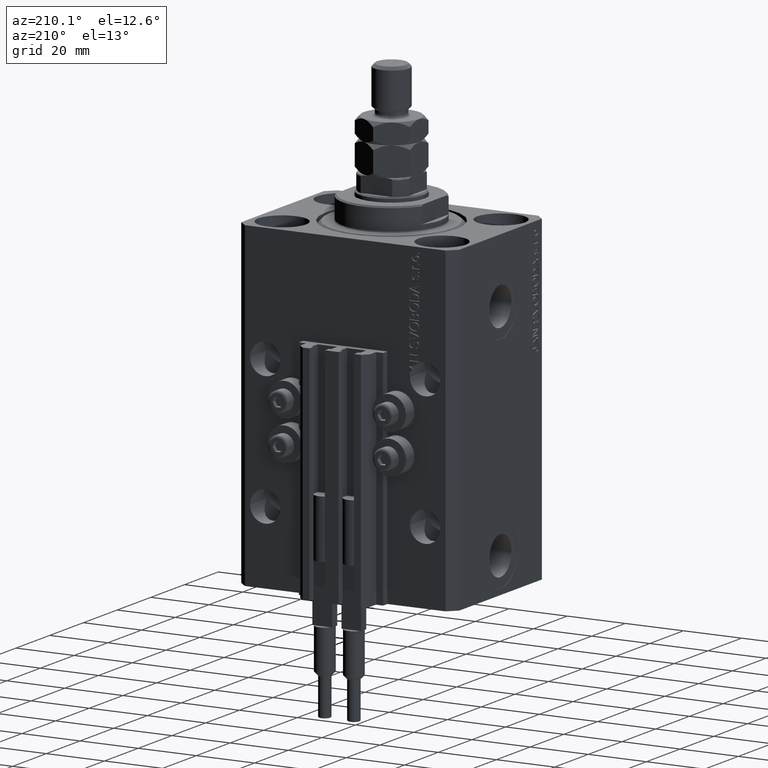
[diagram: clean part render]
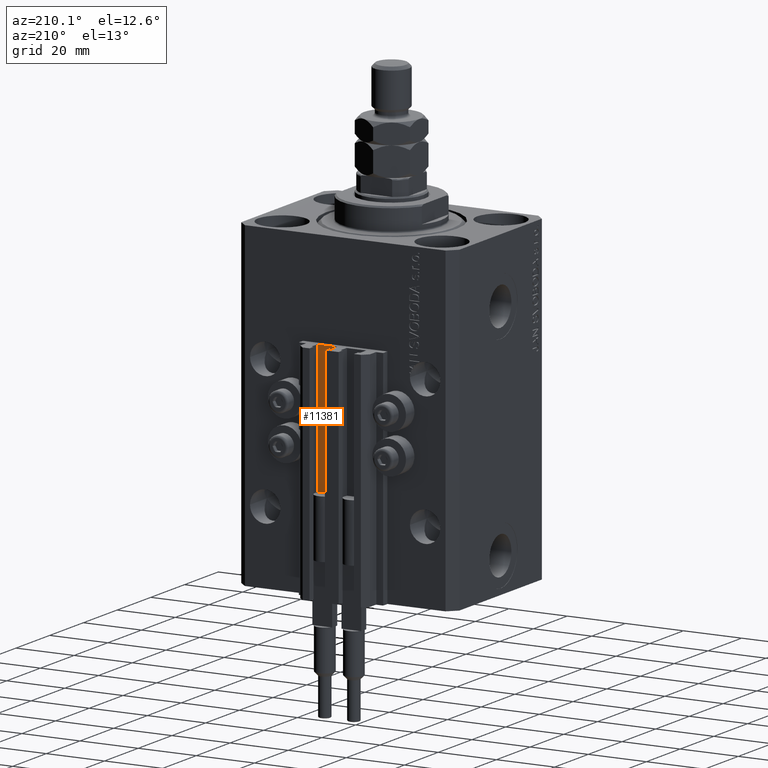
[diagram: same view with one face highlighted and labeled with its STEP entity id]
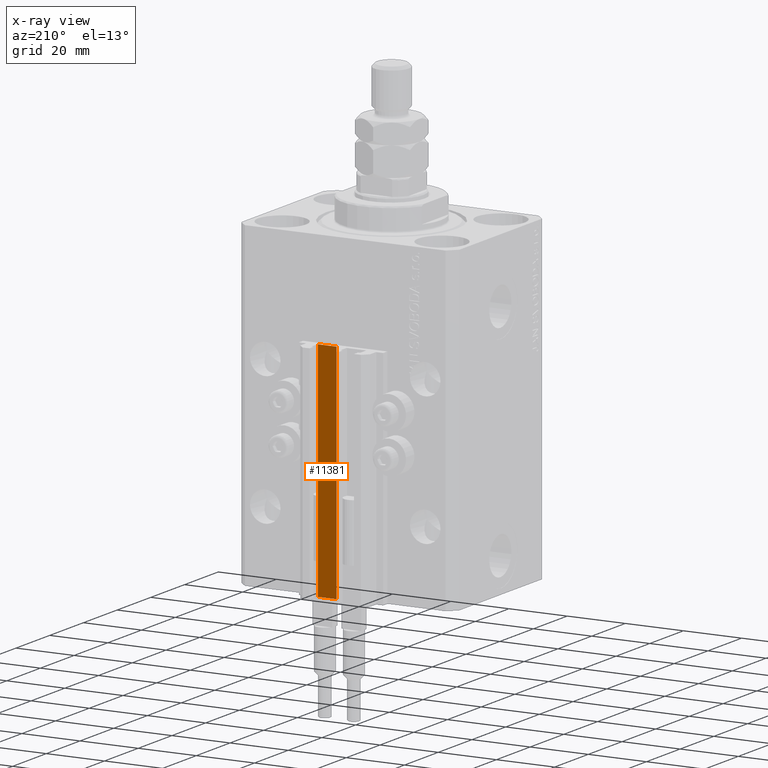
[diagram: x-ray of the same camera — body ghosted, the highlighted face saturated]
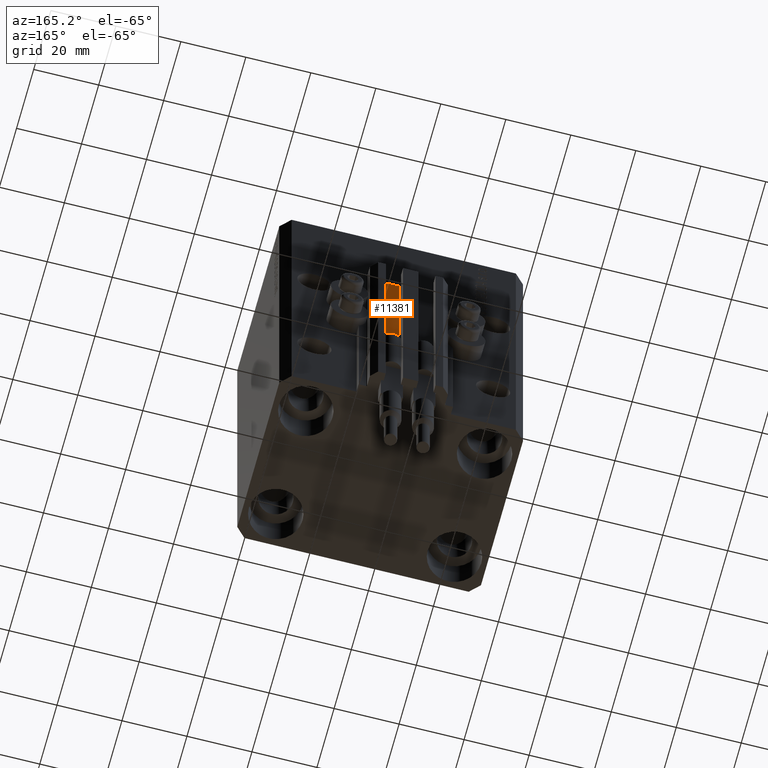
[diagram: same view with one face highlighted and labeled with its STEP entity id]
A machine part, auxiliary view. The second image highlights one B-rep face of the part: STEP entity #11381.
The next image is the same camera in x-ray: the body ghosted, the highlighted face saturated — about 0% of this face is hidden behind the body in this view.
A second angle (auxiliary view) of the same face is appended — the face is thin or edge-on in the first view.
In plain terms, the highlighted planar face has unit normal (-0, 1, 0).
Its self-contained STEP definition (entity closure, byte-faithful):
#439 = ORIENTED_EDGE ( 'NONE', *, *, #34462, .F. ) ;
#1284 = CARTESIAN_POINT ( 'NONE',  ( 8.199999999999999289, 29.50000000000000711, -110.0000000000000000 ) ) ;
#2815 = DIRECTION ( 'NONE',  ( 0.000000000000000000, 0.000000000000000000, 1.000000000000000000 ) ) ;
#2950 = AXIS2_PLACEMENT_3D ( 'NONE', #1284, #16638, #35507 ) ;
#5225 = CARTESIAN_POINT ( 'NONE',  ( 1.800000000000000933, 29.50000000000000000, -33.00000000000000000 ) ) ;
#5455 = CARTESIAN_POINT ( 'NONE',  ( 8.199999999999999289, 29.50000000000000711, -33.00000000000000000 ) ) ;
#5746 = VECTOR ( 'NONE', #2815, 1000.000000000000000 ) ;
#6174 = ORIENTED_EDGE ( 'NONE', *, *, #29830, .T. ) ;
#7870 = CARTESIAN_POINT ( 'NONE',  ( 1.800000000000000933, 29.50000000000000000, -110.0000000000000000 ) ) ;
#9322 = PLANE ( 'NONE',  #2950 ) ;
#9760 = VERTEX_POINT ( 'NONE', #21355 ) ;
#11381 = ADVANCED_FACE ( 'NONE', ( #24421 ), #9322, .T. ) ;
#12407 = VERTEX_POINT ( 'NONE', #5455 ) ;
#14086 = DIRECTION ( 'NONE',  ( 0.000000000000000000, 0.000000000000000000, 1.000000000000000000 ) ) ;
#14774 = DIRECTION ( 'NONE',  ( -1.000000000000000000, -1.084202172485504828E-15, 0.000000000000000000 ) ) ;
#16638 = DIRECTION ( 'NONE',  ( -1.084202172485504828E-15, 1.000000000000000000, 0.000000000000000000 ) ) ;
#18359 = VERTEX_POINT ( 'NONE', #7870 ) ;
#19400 = VECTOR ( 'NONE', #25572, 1000.000000000000000 ) ;
#21355 = CARTESIAN_POINT ( 'NONE',  ( 8.199999999999999289, 29.50000000000000711, -110.0000000000000000 ) ) ;
#22921 = LINE ( 'NONE', #25949, #5746 ) ;
#23347 = ORIENTED_EDGE ( 'NONE', *, *, #49735, .T. ) ;
#24086 = EDGE_CURVE ( 'NONE', #12407, #35876, #37674, .T. ) ;
#24421 = FACE_OUTER_BOUND ( 'NONE', #48603, .T. ) ;
#25572 = DIRECTION ( 'NONE',  ( -1.000000000000000000, -1.084202172485504828E-15, 0.000000000000000000 ) ) ;
#25897 = CARTESIAN_POINT ( 'NONE',  ( 1.800000000000000933, 29.50000000000000000, -110.0000000000000000 ) ) ;
#25949 = CARTESIAN_POINT ( 'NONE',  ( 8.199999999999999289, 29.50000000000000711, -110.0000000000000000 ) ) ;
#29599 = LINE ( 'NONE', #37878, #19400 ) ;
#29830 = EDGE_CURVE ( 'NONE', #9760, #18359, #29599, .T. ) ;
#30620 = CARTESIAN_POINT ( 'NONE',  ( 8.199999999999999289, 29.50000000000000711, -33.00000000000000000 ) ) ;
#34462 = EDGE_CURVE ( 'NONE', #9760, #12407, #22921, .T. ) ;
#34962 = VECTOR ( 'NONE', #14086, 1000.000000000000000 ) ;
#35507 = DIRECTION ( 'NONE',  ( -1.000000000000000000, -1.084202172485504828E-15, 0.000000000000000000 ) ) ;
#35876 = VERTEX_POINT ( 'NONE', #5225 ) ;
#37674 = LINE ( 'NONE', #30620, #48269 ) ;
#37878 = CARTESIAN_POINT ( 'NONE',  ( 8.199999999999999289, 29.50000000000000711, -110.0000000000000000 ) ) ;
#40487 = LINE ( 'NONE', #25897, #34962 ) ;
#46971 = ORIENTED_EDGE ( 'NONE', *, *, #24086, .F. ) ;
#48269 = VECTOR ( 'NONE', #14774, 1000.000000000000000 ) ;
#48603 = EDGE_LOOP ( 'NONE', ( #46971, #439, #6174, #23347 ) ) ;
#49735 = EDGE_CURVE ( 'NONE', #18359, #35876, #40487, .T. ) ;